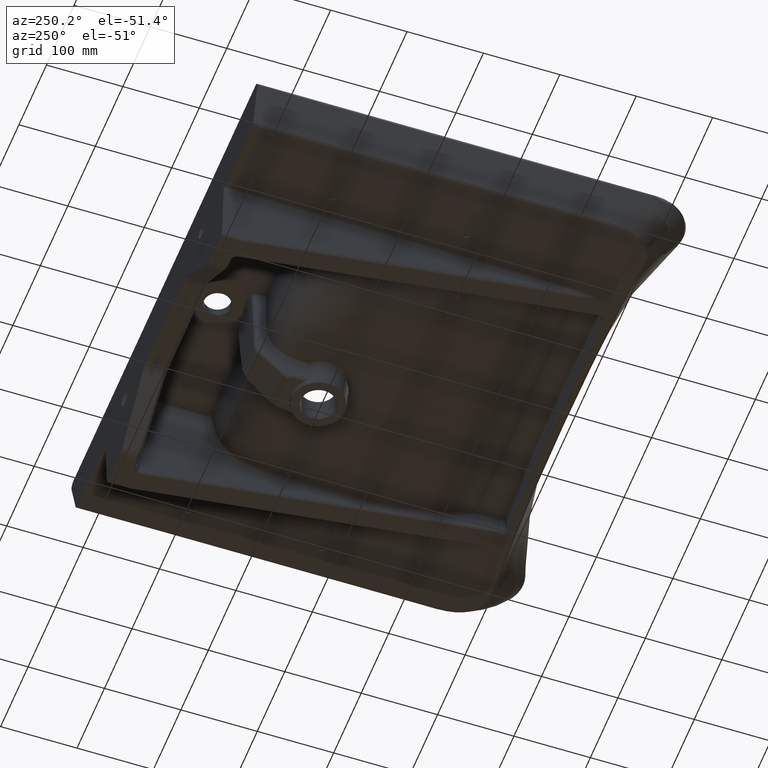
[diagram: clean part render]
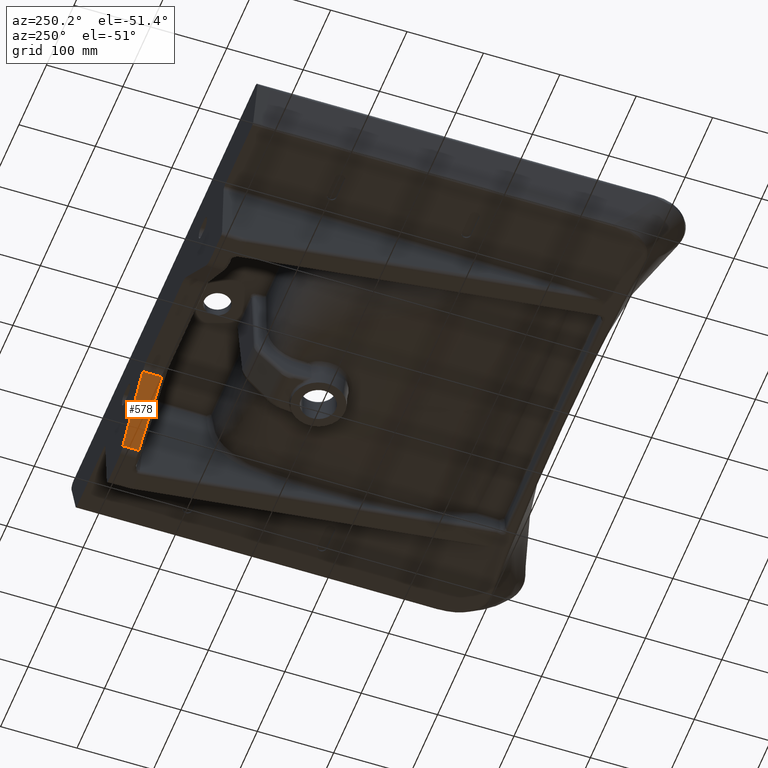
[diagram: same view with one face highlighted and labeled with its STEP entity id]
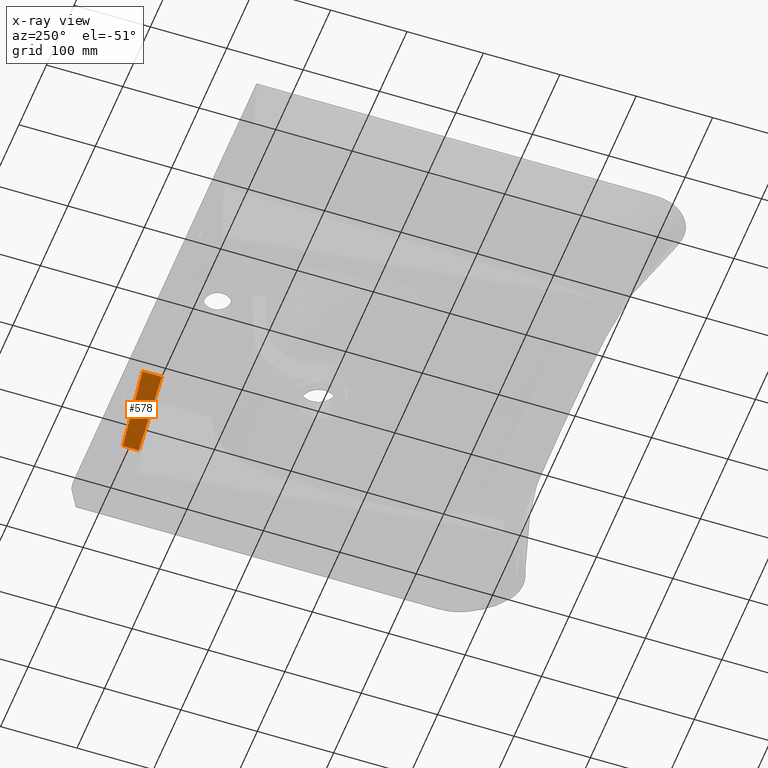
[diagram: x-ray of the same camera — body ghosted, the highlighted face saturated]
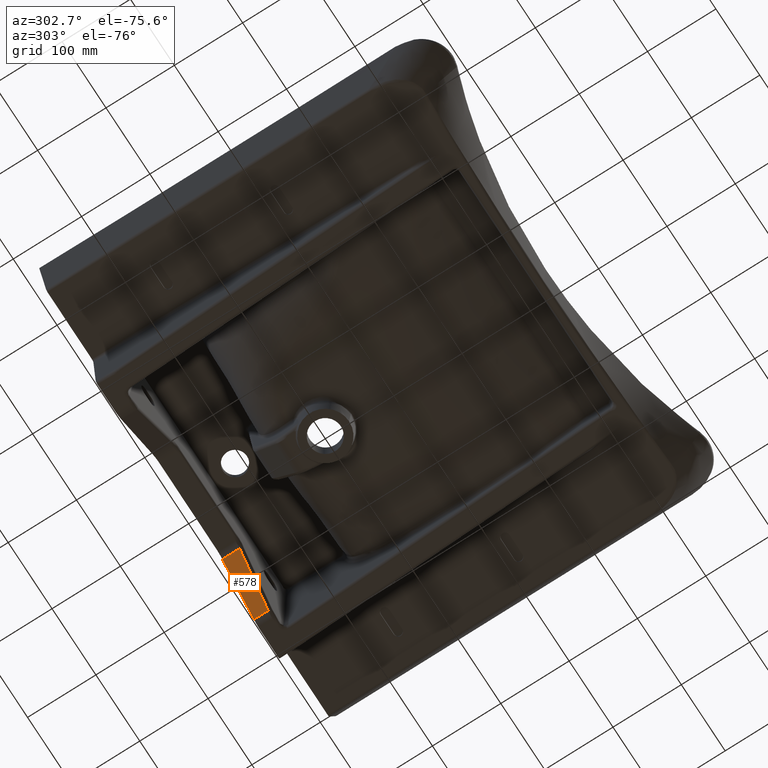
[diagram: same view with one face highlighted and labeled with its STEP entity id]
A machine part, auxiliary view. The second image highlights one B-rep face of the part: STEP entity #578.
The next image is the same camera in x-ray: the body ghosted, the highlighted face saturated — about 0% of this face is hidden behind the body in this view.
A second angle (auxiliary view) of the same face is appended — the face is thin or edge-on in the first view.
In plain terms, the highlighted planar face has unit normal (-0.6524, 0, -0.7579).
Its self-contained STEP definition (entity closure, byte-faithful):
#327=B_SPLINE_CURVE_WITH_KNOTS('',3,(#4135,#4136,#4137,#4138),
 .UNSPECIFIED.,.F.,.F.,(4,4),(0.,1.),.UNSPECIFIED.);
#578=ADVANCED_FACE('',(#810),#766,.T.);
#766=PLANE('',#3281);
#810=FACE_OUTER_BOUND('',#1009,.T.);
#1009=EDGE_LOOP('',(#1435,#1436,#1437,#1438));
#1435=ORIENTED_EDGE('',*,*,#2672,.T.);
#1436=ORIENTED_EDGE('',*,*,#2673,.T.);
#1437=ORIENTED_EDGE('',*,*,#2674,.T.);
#1438=ORIENTED_EDGE('',*,*,#2603,.F.);
#2313=VERTEX_POINT('',#4134);
#2314=VERTEX_POINT('',#4139);
#2372=VERTEX_POINT('',#6787);
#2373=VERTEX_POINT('',#6789);
#2603=EDGE_CURVE('',#2313,#2314,#327,.T.);
#2672=EDGE_CURVE('',#2313,#2372,#3083,.T.);
#2673=EDGE_CURVE('',#2372,#2373,#3084,.T.);
#2674=EDGE_CURVE('',#2373,#2314,#3085,.T.);
#3083=LINE('',#6786,#3189);
#3084=LINE('',#6788,#3190);
#3085=LINE('',#6790,#3191);
#3189=VECTOR('',#3531,1.);
#3190=VECTOR('',#3532,1.);
#3191=VECTOR('',#3533,1.);
#3281=AXIS2_PLACEMENT_3D('',#6791,#3534,#3535);
#3531=DIRECTION('',(-2.6507899949707E-011,-1.,-8.97033666000819E-028));
#3532=DIRECTION('',(-0.757127767926606,-0.0455695900399891,0.651675498617267));
#3533=DIRECTION('',(2.6507899949707E-011,1.,8.97033666000819E-028));
#3534=DIRECTION('',(-0.652353184865919,1.72925129562985E-011,-0.757915115428695));
#3535=DIRECTION('',(0.757915115428695,0.,-0.652353184865919));
#4134=CARTESIAN_POINT('',(151.064574472468,201.490373227493,-23.1573199006342));
#4135=CARTESIAN_POINT('',(159.257850860568,201.490373227276,-30.209442014916));
#4136=CARTESIAN_POINT('',(130.207726302663,201.490373228046,-5.20540015017598));
#4137=CARTESIAN_POINT('',(101.157601744769,201.490373228816,19.7986417145641));
#4138=CARTESIAN_POINT('',(72.1074771868652,201.490373229586,44.8026835793041));
#4139=CARTESIAN_POINT('',(79.1389364307731,201.490373229399,38.7505614634608));
#6786=CARTESIAN_POINT('',(151.064574471804,176.4204471188,-23.1573199006334));
#6787=CARTESIAN_POINT('',(151.064574471918,180.744458065433,-23.1573199006334));
#6788=CARTESIAN_POINT('',(159.956612410955,181.279647158565,-30.8108805057535));
#6789=CARTESIAN_POINT('',(79.1389364301086,176.415437287466,38.7505614634604));
#6790=CARTESIAN_POINT('',(79.1389364307732,201.490373229402,38.7505614634604));
#6791=CARTESIAN_POINT('',(159.257850860568,201.490373227276,-30.209442014916));